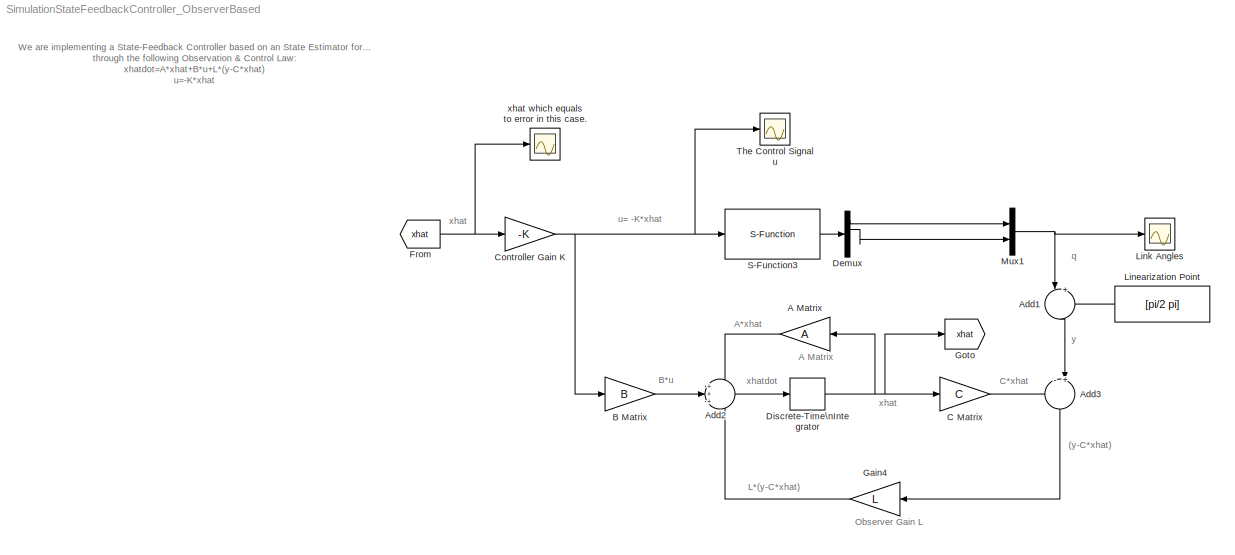
MODEL SimulationStateFeedbackController_ObserverBased
KIND model
BLOCK [Gain] A Matrix
  Gain = A
  Multiplication = Matrix(K*u)
  OutDataTypeStr = Inherit: Inherit via internal rule
  ParamDataTypeStr = Inherit: Inherit via internal rule
  SID = 14
  SaturateOnIntegerOverflow = off
BLOCK [Sum] Add1
  IconShape = round
  InputSameDT = off
  Inputs = |+-
  OutDataTypeStr = Inherit: Inherit via internal rule
  Ports = [2, 1]
  SID = 107
  SaturateOnIntegerOverflow = off
BLOCK [Sum] Add2
  IconShape = round
  InputSameDT = off
  Inputs = +++
  OutDataTypeStr = Inherit: Inherit via internal rule
  Ports = [3, 1]
  SID = 3
  SaturateOnIntegerOverflow = off
BLOCK [Sum] Add3
  IconShape = round
  InputSameDT = off
  Inputs = -+|
  OutDataTypeStr = Inherit: Inherit via internal rule
  Ports = [2, 1]
  SID = 4
  SaturateOnIntegerOverflow = off
BLOCK [Gain] B Matrix
  Gain = B
  Multiplication = Matrix(K*u)
  OutDataTypeStr = Inherit: Inherit via internal rule
  ParamDataTypeStr = Inherit: Inherit via internal rule
  SID = 12
  SaturateOnIntegerOverflow = off
BLOCK [Gain] C Matrix
  Gain = C
  Multiplication = Matrix(K*u)
  OutDataTypeStr = Inherit: Inherit via internal rule
  ParamDataTypeStr = Inherit: Inherit via internal rule
  SID = 13
  SaturateOnIntegerOverflow = off
BLOCK [Gain] Controller Gain K
  Gain = -K
  Multiplication = Matrix(K*u)
  OutDataTypeStr = Inherit: Inherit via internal rule
  ParamDataTypeStr = Inherit: Inherit via internal rule
  SID = 11
  SaturateOnIntegerOverflow = off
BLOCK [Demux] Demux
  DisplayOption = bar
  Ports = [1, 4]
  SID = 112
BLOCK [DiscreteIntegrator] Discrete-Time\nIntegrator
  ExternalReset = none
  ICPrevOutput = DiscIntNeverNeededParam
  ICPrevScaledInput = DiscIntNeverNeededParam
  InitialCondition = [0 0 0 0]'
  InitialConditionSource = internal
  IntegratorMethod = Integration: Forward Euler
  Ports = [1, 1]
  SID = 10
  SampleTime = T
BLOCK [From] From
  GotoTag = xhat
  SID = 110
BLOCK [Gain] Gain4
  Gain = L
  Multiplication = Matrix(K*u)
  OutDataTypeStr = Inherit: Inherit via internal rule
  ParamDataTypeStr = Inherit: Inherit via internal rule
  SID = 15
  SaturateOnIntegerOverflow = off
BLOCK [Goto] Goto
  GotoTag = xhat
  SID = 109
  TagVisibility = local
BLOCK [Constant] Linearization Point
  SID = 106
  Value = [pi/2 pi]
BLOCK [Scope] Link Angles
  DataFormat = StructureWithTime
  Floating = off
  LimitDataPoints = off
  NumInputPorts = 1
  Ports = [1]
  SID = 19
  SampleTime = 0
  SaveName = ScopeData1
  YMax = 1.75
  YMin = -0.25
BLOCK [Mux] Mux1
  DisplayOption = bar
  Inputs = 2
  Ports = [2, 1]
  SID = 17
BLOCK [S-Function] S-Function3
  EnableBusSupport = off
  FunctionName = NonLinModel
  Parameters = X0,Parameters
  Ports = [1, 1]
  SID = 111
BLOCK [Scope] The Control Signal u
  DataFormat = StructureWithTime
  Floating = off
  LimitDataPoints = off
  NumInputPorts = 1
  Ports = [1]
  SID = 20
  SampleTime = 0
  SaveName = ScopeData3
  TimeRange = 20
  YMax = 110
  YMin = -110
BLOCK [Scope] xhat which equals to error in this case.
  DataFormat = StructureWithTime
  Floating = off
  LimitDataPoints = off
  NumInputPorts = 1
  Ports = [1]
  SID = 21
  SampleTime = 0
  YMax = -0.0001
  YMin = -0.00024
ANNOTATION (root): (y-C*xhat)
ANNOTATION (root): A Matrix
ANNOTATION (root): A*xhat
ANNOTATION (root): B*u
ANNOTATION (root): C*xhat
ANNOTATION (root): L*(y-C*xhat)
ANNOTATION (root): Observer Gain L
ANNOTATION (root): We are implementing a State-Feedback Controller based on an State Estimator for the 2 DOF PantoGraph Mechanism,\nthrough the following Observation & Control Law:\nxhatdot=A*xhat+B*u+L*(y-C*xhat)\nu=-K*xhat
ANNOTATION (root): q
ANNOTATION (root): u= -K*xhat
ANNOTATION (root): xhat
ANNOTATION (root): xhatdot
ANNOTATION (root): y
LINE A Matrix:1 -> Add2:1
LINE Add1:1 -> Add3:2
LINE Add2:1 -> Discrete-Time\nIntegrator:1
LINE Add3:1 -> Gain4:1
LINE B Matrix:1 -> Add2:2
LINE C Matrix:1 -> Add3:1
NET Controller Gain K:1 -> B Matrix:1, S-Function3:1, The Control Signal u:1
LINE Demux:1 -> Mux1:1
LINE Demux:2 -> Mux1:2
NET Discrete-Time\nIntegrator:1 -> A Matrix:1, C Matrix:1, Goto:1
NET From:1 -> Controller Gain K:1, xhat which equals to error in this case.:1
LINE Gain4:1 -> Add2:3
LINE Linearization Point:1 -> Add1:2
NET Mux1:1 -> Add1:1, Link Angles:1
LINE S-Function3:1 -> Demux:1
note: NET lines group one-source signal fan-out (src -> all destinations, sorted); 1:1 wires keep LINE
